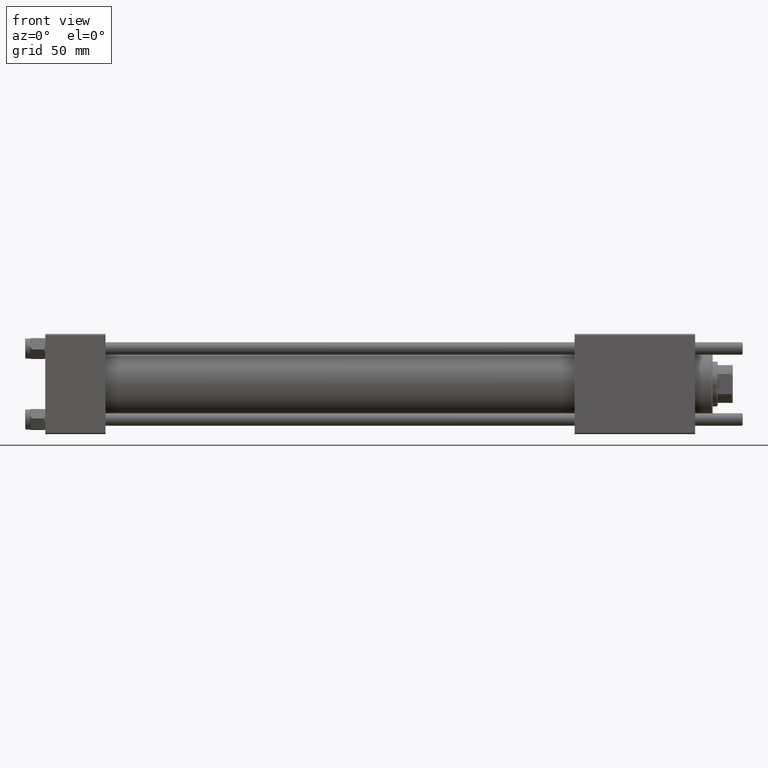
[diagram: clean part render]
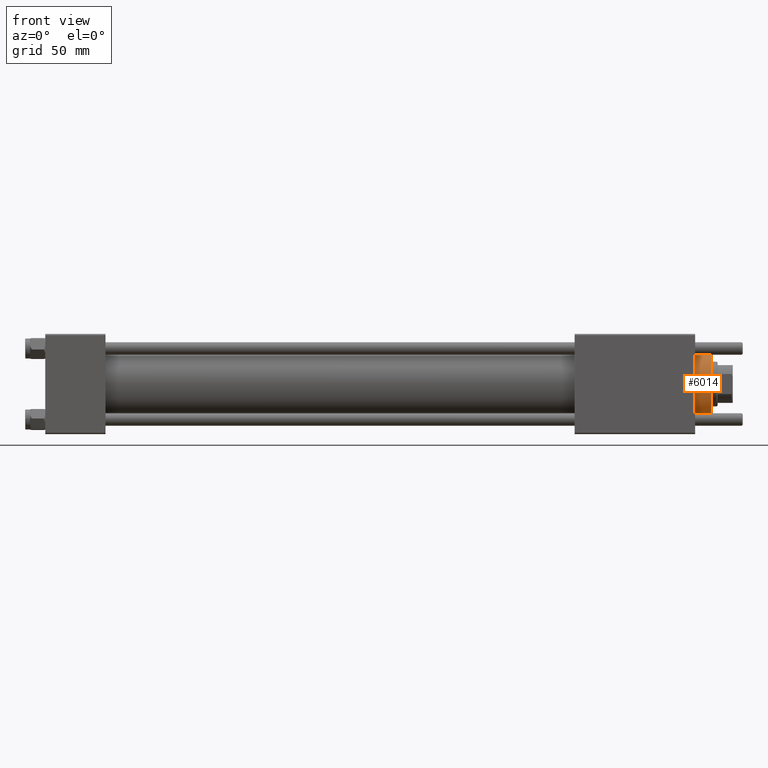
[diagram: same view with one face highlighted and labeled with its STEP entity id]
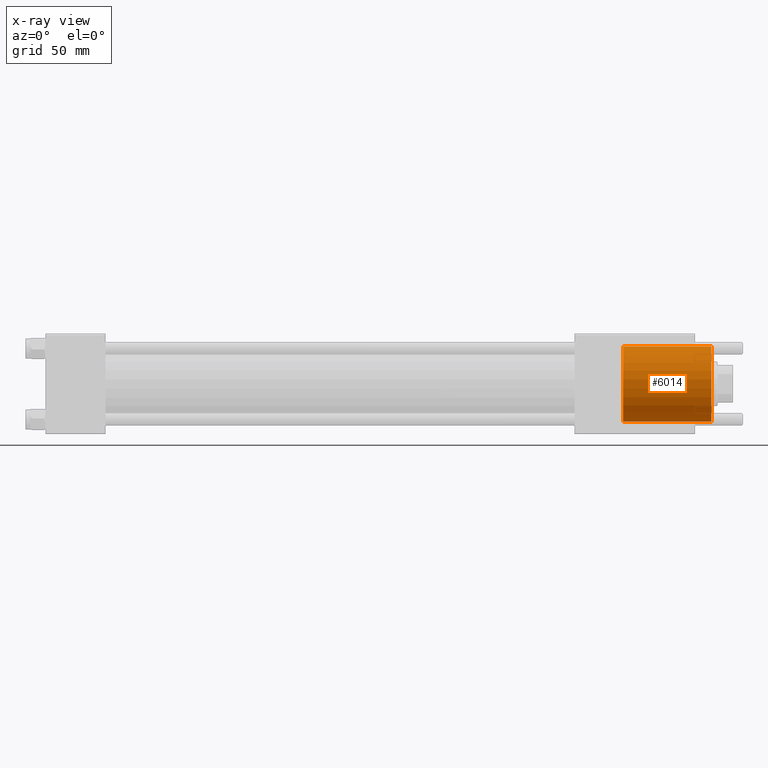
[diagram: x-ray of the same camera — body ghosted, the highlighted face saturated]
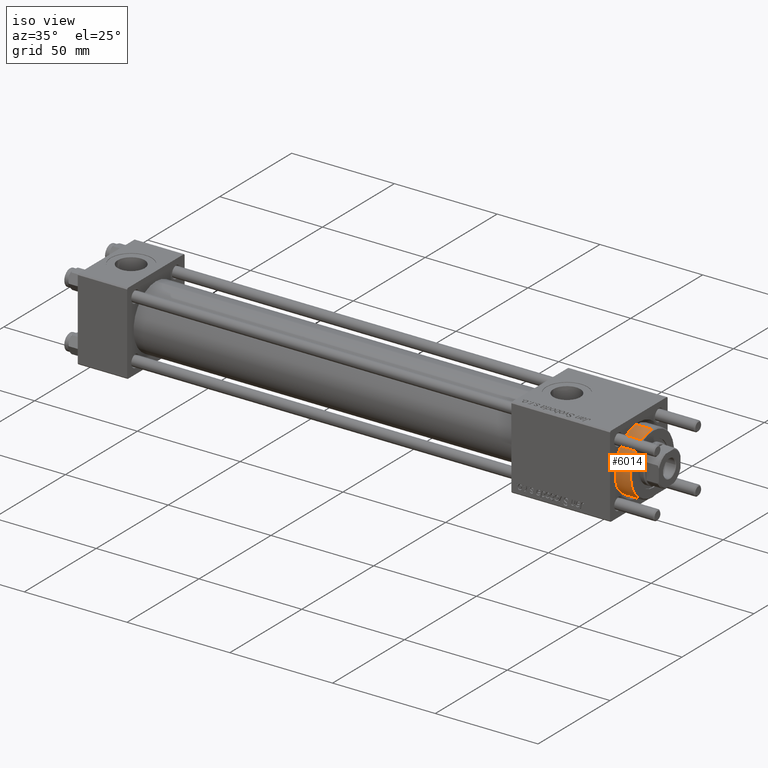
[diagram: same view with one face highlighted and labeled with its STEP entity id]
A machine part, front view. The second image highlights one B-rep face of the part: STEP entity #6014.
The next image is the same camera in x-ray: the body ghosted, the highlighted face saturated — about 0% of this face is hidden behind the body in this view.
A second angle (iso view) of the same face is appended — the face is thin or edge-on in the first view.
In plain terms, the highlighted cylindrical surface (partial cylindrical patch) has radius 15 mm, axis along (-1, -0, 0).
Its self-contained STEP definition (entity closure, byte-faithful):
#1128 = LINE ( 'NONE', #18610, #12507 ) ;
#1514 = EDGE_CURVE ( 'NONE', #17350, #51033, #1128, .T. ) ;
#2968 = CARTESIAN_POINT ( 'NONE',  ( -15.00000000000000000, 0.000000000000000000, 28.69999999999999929 ) ) ;
#3390 = FACE_OUTER_BOUND ( 'NONE', #12730, .T. ) ;
#6014 = ADVANCED_FACE ( 'NONE', ( #3390 ), #46989, .T. ) ;
#6711 = ORIENTED_EDGE ( 'NONE', *, *, #47917, .T. ) ;
#6862 = DIRECTION ( 'NONE',  ( 0.000000000000000000, 0.000000000000000000, -1.000000000000000000 ) ) ;
#8010 = CARTESIAN_POINT ( 'NONE',  ( 15.00000000000000000, 1.836970198721029589E-15, 35.19999999999999574 ) ) ;
#9283 = EDGE_CURVE ( 'NONE', #54926, #10721, #15889, .T. ) ;
#9756 = CARTESIAN_POINT ( 'NONE',  ( -15.00000000000000000, 0.000000000000000000, 0.000000000000000000 ) ) ;
#10721 = VERTEX_POINT ( 'NONE', #9756 ) ;
#12507 = VECTOR ( 'NONE', #23203, 1000.000000000000000 ) ;
#12730 = EDGE_LOOP ( 'NONE', ( #53721, #6711, #14166, #32891 ) ) ;
#14166 = ORIENTED_EDGE ( 'NONE', *, *, #9283, .T. ) ;
#14400 = AXIS2_PLACEMENT_3D ( 'NONE', #34094, #37273, #24924 ) ;
#15754 = DIRECTION ( 'NONE',  ( 1.000000000000000000, 0.000000000000000000, 0.000000000000000000 ) ) ;
#15889 = LINE ( 'NONE', #2968, #24549 ) ;
#17350 = VERTEX_POINT ( 'NONE', #8010 ) ;
#18610 = CARTESIAN_POINT ( 'NONE',  ( 15.00000000000000000, 1.836970198721029589E-15, 28.69999999999999929 ) ) ;
#19563 = AXIS2_PLACEMENT_3D ( 'NONE', #46711, #6862, #15754 ) ;
#20547 = DIRECTION ( 'NONE',  ( 1.000000000000000000, 0.000000000000000000, 0.000000000000000000 ) ) ;
#23203 = DIRECTION ( 'NONE',  ( -0.000000000000000000, -0.000000000000000000, -1.000000000000000000 ) ) ;
#24024 = CARTESIAN_POINT ( 'NONE',  ( 15.00000000000000000, 1.836970198721029589E-15, 0.000000000000000000 ) ) ;
#24154 = CIRCLE ( 'NONE', #30588, 15.00000000000000000 ) ;
#24478 = DIRECTION ( 'NONE',  ( -0.000000000000000000, -0.000000000000000000, -1.000000000000000000 ) ) ;
#24549 = VECTOR ( 'NONE', #24478, 1000.000000000000000 ) ;
#24924 = DIRECTION ( 'NONE',  ( -1.000000000000000000, 0.000000000000000000, 0.000000000000000000 ) ) ;
#29456 = DIRECTION ( 'NONE',  ( 0.000000000000000000, 0.000000000000000000, 1.000000000000000000 ) ) ;
#30588 = AXIS2_PLACEMENT_3D ( 'NONE', #51770, #29456, #20547 ) ;
#30964 = CARTESIAN_POINT ( 'NONE',  ( -15.00000000000000000, 0.000000000000000000, 35.19999999999999574 ) ) ;
#32891 = ORIENTED_EDGE ( 'NONE', *, *, #49004, .T. ) ;
#34094 = CARTESIAN_POINT ( 'NONE',  ( 0.000000000000000000, 0.000000000000000000, 28.69999999999999929 ) ) ;
#37273 = DIRECTION ( 'NONE',  ( -0.000000000000000000, -0.000000000000000000, -1.000000000000000000 ) ) ;
#42484 = CIRCLE ( 'NONE', #19563, 15.00000000000000000 ) ;
#46711 = CARTESIAN_POINT ( 'NONE',  ( 0.000000000000000000, 0.000000000000000000, 35.19999999999999574 ) ) ;
#46989 = CYLINDRICAL_SURFACE ( 'NONE', #14400, 15.00000000000000000 ) ;
#47917 = EDGE_CURVE ( 'NONE', #17350, #54926, #42484, .T. ) ;
#49004 = EDGE_CURVE ( 'NONE', #10721, #51033, #24154, .T. ) ;
#51033 = VERTEX_POINT ( 'NONE', #24024 ) ;
#51770 = CARTESIAN_POINT ( 'NONE',  ( 0.000000000000000000, 0.000000000000000000, 0.000000000000000000 ) ) ;
#53721 = ORIENTED_EDGE ( 'NONE', *, *, #1514, .F. ) ;
#54926 = VERTEX_POINT ( 'NONE', #30964 ) ;